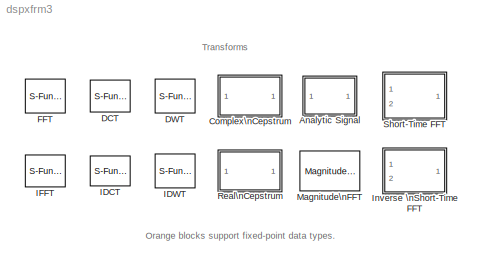
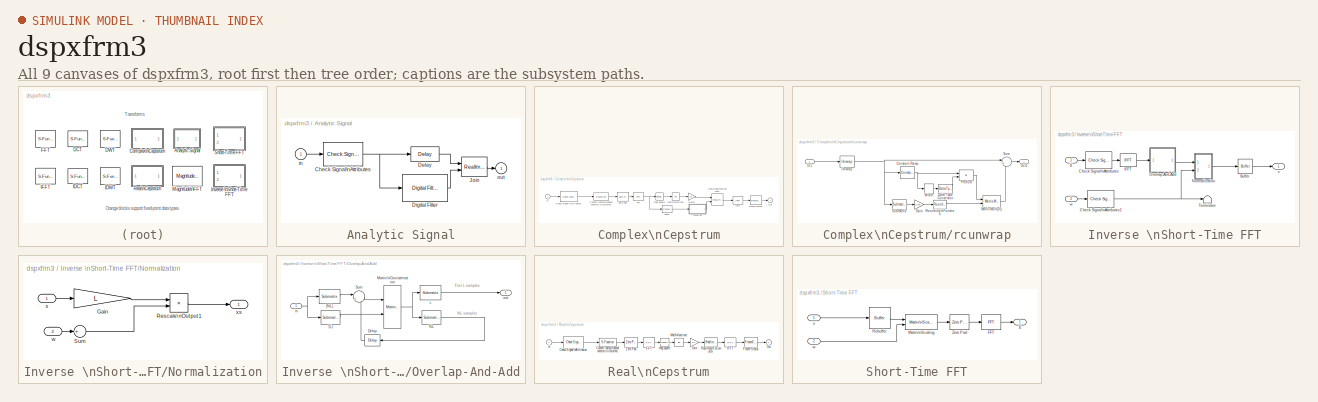
[diagram: thumbnail index - all 9 canvases of the model, root first then tree order]
MODEL dspxfrm3
KIND library
BLOCK [SubSystem] Analytic Signal
  MaskDescription = Complex analytic signal of input.
  MaskDisplay = plot(x,y)
  MaskEnableString = on
  MaskHelp = web(dspbhelp);
  MaskIconFrame = on
  MaskIconOpaque = on
  MaskIconRotate = none
  MaskIconUnits = autoscale
  MaskInitialization = x = [0,NaN,100,NaN,[58 58],NaN,[24 92],NaN,[58 24 24 58],NaN,[58 64 68 72 76 80 84 88],NaN, [42 42],NaN,[8 76],NaN,[72 68 64 60 56 52 48 42 36 32 28 24 20 16 12],NaN,[32 43 45 43 35]];\ny = [0,NaN,100,NaN,[43 8],NaN,[16 16],NaN,[18 18 17 17],NaN,[16 24 36 24 28 28 32 16],NaN, [92 56],NaN,[64 64],NaN,[64 80 76 76 72 84 72 64 72 84 72 76 76 80 64],NaN,[51 33 41 33 35] ];\nb=dspblkanalytic2('design',...<+5ch>
  MaskPromptString = Filter order (must be even):
  MaskSelfModifiable = on
  MaskStyleString = edit
  MaskToolTipString = on
  MaskTunableValueString = off
  MaskType = Analytic Signal
  MaskValueString = 100
  MaskVariables = N=@1;
  MaskVisibilityString = on
  MinAlgLoopOccurrences = off
  Ports = [1, 1]
  PropExecContextAcrossSSBoundary = on
  RTWSystemCode = Auto
  TreatAsAtomicUnit = off
BLOCK [Reference] Analytic Signal/Check Signal\nAttributes  REF=dspsigattribs/Check Signal\nAttributes
  Complexity = Ignore
  DatatypeCheckMethod = Is...
  DatatypeGeneral = Floating-point
  Dimensions = 1-D
  DimsCheckMethod = Ignore
  DtypeFixedSpecific = Any fixed-point
  DtypeFloatSpecific = Any floating-point
  DtypeIntSpecific = Any integer
  Frame = Ignore
  Ports = [1, 1]
  SampleMode = Ignore
  ShowPortLabels = on
  SigAttribCheckMethod = Does not match attributes exactly
  SourceBlock = dspsigattribs/Check Signal\nAttributes
  SourceType = Check Signal Attributes
BLOCK [Reference] Analytic Signal/Delay  REF=dspsigops/Delay
  Ports = [1, 1]
  SourceBlock = dspsigops/Delay
  SourceType = Delay
  delay = N/2
  dif_ic_for_ch = off
  dif_ic_for_dly = off
  dly_unit = Samples
  ic = 0
  ic_detail = off
  reset_popup = None
BLOCK [Reference] Analytic Signal/Digital Filter  REF=dsparch4/Digital Filter
  AllPoleFiltStruct = Direct form
  BiQuadCoeffs = [1 0.3 0.4 1 0.1 0.2]
  CoeffSource = Specify via dialog
  DenCoeffs = [1 0.1]
  FIRFiltStruct = Direct form transposed
  FiltPerSampPopup = One filter per frame
  IC = 0
  ICden = 0
  ICnum = 0
  IIRFiltStruct = Direct form II transposed
  LatticeCoeffs = [0.2 0.4]
  NumCoeffs = b
  Ports = [1, 1]
  SourceBlock = dsparch4/Digital Filter
  SourceType = Digital Filter
  TypePopup = FIR (all zeros)
  accumFracLength = 30
  accumMode = Same as product output
  accumWordLength = 32
  additionalParams = off
  allowOverrides = on
  denIgnore = on
  firstCoeffFracLength = 15
  firstCoeffMode = Same as input
  firstCoeffWordLength = 16
  memoryFracLength = 15
  memoryMode = Same as accumulator
  memoryWordLength = 16
  outputFracLength = 15
  outputMode = Same as accumulator
  outputWordLength = 16
  overflowMode = off
  prodOutputFracLength = 30
  prodOutputMode = Same as input
  prodOutputWordLength = 32
  roundingMode = Floor
  secondCoeffFracLength = 15
  secondCoeffMode = Same as numerator
  secondCoeffWordLength = 16
  showAcc = off
  showCoeff = off
  showMem = off
  showMpy = off
  showOut = off
  thirdCoeffFracLength = 15
  thirdCoeffMode = Same as input
  thirdCoeffWordLength = 16
BLOCK [RealImagToComplex] Analytic Signal/Join
  Input = Real and imag
  Ports = [2, 1]
BLOCK [Inport] Analytic Signal/in
  IconDisplay = Port number
  LatchInput = off
BLOCK [Outport] Analytic Signal/out
  BusOutputAsStruct = off
  IconDisplay = Port number
  InitialOutput = 0
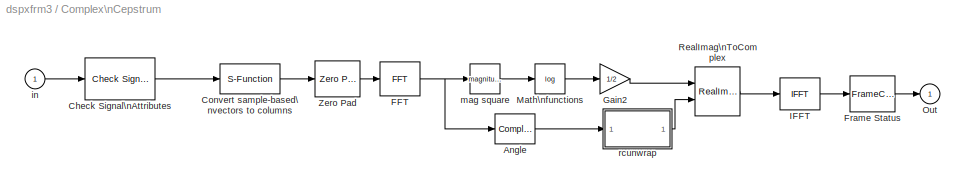
BLOCK [SubSystem] Complex\nCepstrum
  MaskCallbackString = dspblkcceps|
  MaskDescription = Complex cepstrum of input signal.  Input is modified to remove possible phase discontinuity at +/- pi radians.
  MaskDisplay = disp('Complex\\n Cepstrum')
  MaskEnableString = on,off
  MaskHelp = web(dspbhelp);\n
  MaskIconFrame = on
  MaskIconOpaque = on
  MaskIconRotate = none
  MaskIconUnits = autoscale
  MaskInitialization = dspblkcceps('init');
  MaskPromptString = Inherit FFT length from input port dimensions|FFT length:
  MaskSelfModifiable = on
  MaskStyleString = checkbox,edit
  MaskTabNameString = ,
  MaskToolTipString = on,on
  MaskTunableValueString = off,off
  MaskType = Complex Cepstrum
  MaskValueString = on|64
  MaskVarAliasString = ,
  MaskVariables = inheritFFT=@1;N=@2;
  MaskVisibilityString = on,on
  MinAlgLoopOccurrences = off
  Ports = [1, 1]
  PropExecContextAcrossSSBoundary = on
  RTWSystemCode = Auto
  TreatAsAtomicUnit = off
BLOCK [ComplexToMagnitudeAngle] Complex\nCepstrum/Angle
  Output = Angle
  Ports = [1, 1]
BLOCK [Reference] Complex\nCepstrum/Check Signal\nAttributes  REF=dspsigattribs/Check Signal\nAttributes
  Complexity = Real
  DatatypeCheckMethod = Is...
  DatatypeGeneral = Floating-point
  Dimensions = 1-D
  DimsCheckMethod = Ignore
  DtypeFixedSpecific = Any fixed-point
  DtypeFloatSpecific = Any floating-point
  DtypeIntSpecific = Any integer
  Frame = Ignore
  Ports = [1, 1]
  SampleMode = Discrete
  ShowPortLabels = on
  SigAttribCheckMethod = Does not match attributes exactly
  SourceBlock = dspsigattribs/Check Signal\nAttributes
  SourceType = Check Signal Attributes
BLOCK [S-Function] Complex\nCepstrum/Convert sample-based\nvectors to columns
  FunctionName = sdsp2col
  Ports = [1, 1]
BLOCK [Reference] Complex\nCepstrum/FFT  REF=dspxfrm3/FFT
  BitRevOrder = off
  CompMethod = Table lookup
  DialogController = dspDDGCreate
  DialogControllerArgs = DataTag0
  Ports = [1, 1]
  SkipNorm = on
  SourceBlock = dspxfrm3/FFT
  SourceType = FFT
  TableOpt = Speed
  accumFracLength = 30
  accumMode = Inherit via internal rule
  accumWordLength = 32
  additionalParams = off
  allowOverrides = on
  firstCoeffFracLength = 15
  firstCoeffMode = Same word length as input
  firstCoeffWordLength = 16
  outputFracLength = 15
  outputMode = Inherit via internal rule
  outputWordLength = 16
  overflowMode = off
  prodOutputFracLength = 30
  prodOutputMode = Inherit via internal rule
  prodOutputWordLength = 32
  roundingMode = Floor
BLOCK [FrameConversion] Complex\nCepstrum/Frame Status
  OutFrame = Sample based
BLOCK [Gain] Complex\nCepstrum/Gain2
  Gain = 1/2
BLOCK [Reference] Complex\nCepstrum/IFFT  REF=dspxfrm3/IFFT
  BitRevOrder = off
  CompMethod = Table lookup
  DialogController = dspDDGCreate
  DialogControllerArgs = DataTag1
  Ports = [1, 1]
  SkipNorm = off
  SourceBlock = dspxfrm3/IFFT
  SourceType = IFFT
  TableOpt = Speed
  accumFracLength = 30
  accumMode = Inherit via internal rule
  accumWordLength = 32
  additionalParams = off
  allowOverrides = on
  cs_in = on
  firstCoeffFracLength = 15
  firstCoeffMode = Same word length as input
  firstCoeffWordLength = 16
  mode = Real
  outputFracLength = 15
  outputMode = Inherit via internal rule
  outputWordLength = 16
  overflowMode = off
  prodOutputFracLength = 30
  prodOutputMode = Inherit via internal rule
  prodOutputWordLength = 32
  roundingMode = Floor
BLOCK [Math] Complex\nCepstrum/Math\nfunctions
  Operator = log
  Ports = [1, 1]
BLOCK [Outport] Complex\nCepstrum/Out
  BusOutputAsStruct = off
  IconDisplay = Port number
  InitialOutput = 0
BLOCK [RealImagToComplex] Complex\nCepstrum/RealImag\nToComplex
  Input = Real and imag
  Ports = [2, 1]
BLOCK [Reference] Complex\nCepstrum/Zero Pad  REF=dspsigops/Zero Pad
  Ports = [1, 1]
  SourceBlock = dspsigops/Zero Pad
  SourceType = Zero Pad
  numOutCols = 1
  numOutRows = N
  padNumOutColsSpecMethod = User-specified
  padNumOutRowsSpecMethod = User-specified
  padSigAt = End
  trunc_flag = None
  zpadAlong = None
BLOCK [Inport] Complex\nCepstrum/in
  IconDisplay = Port number
  LatchInput = off
BLOCK [Math] Complex\nCepstrum/mag square
  Operator = magnitude^2
  Ports = [1, 1]
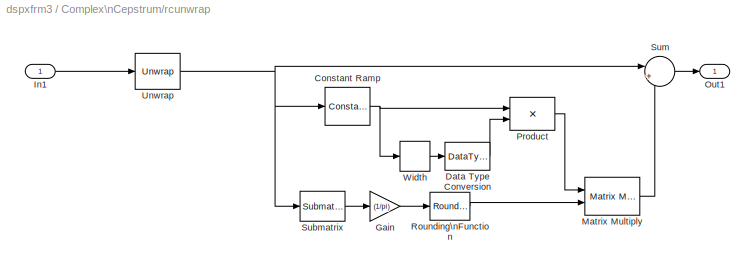
BLOCK [SubSystem] Complex\nCepstrum/rcunwrap
  MinAlgLoopOccurrences = off
  Ports = [1, 1]
  PropExecContextAcrossSSBoundary = on
  RTWSystemCode = Auto
  ShowPortLabels = off
  TreatAsAtomicUnit = off
BLOCK [Reference] Complex\nCepstrum/rcunwrap/Constant Ramp  REF=dspsrcs4/Constant Ramp
  L = Rows
  Offset = 0
  Ports = [1, 1]
  Slope = 2*pi
  SourceBlock = dspsrcs4/Constant Ramp
  SourceType = Constant Ramp
BLOCK [DataTypeConversion] Complex\nCepstrum/rcunwrap/Data Type Conversion
BLOCK [Gain] Complex\nCepstrum/rcunwrap/Gain
  Gain = (1/pi)
BLOCK [Inport] Complex\nCepstrum/rcunwrap/In1
  IconDisplay = Port number
  LatchInput = off
BLOCK [Reference] Complex\nCepstrum/rcunwrap/Matrix Multiply  REF=dspmtrx3/Matrix Multiply
  OptimizationLevel = None
  Ports = [2, 1]
  SourceBlock = dspmtrx3/Matrix Multiply
  SourceType = Matrix Multiply
  numInputPorts = 2
BLOCK [Outport] Complex\nCepstrum/rcunwrap/Out1
  BusOutputAsStruct = off
  IconDisplay = Port number
BLOCK [Product] Complex\nCepstrum/rcunwrap/Product
  Inputs = */
  Ports = [2, 1]
  RndMeth = Floor
BLOCK [Rounding] Complex\nCepstrum/rcunwrap/Rounding\nFunction
  Operator = round
BLOCK [Reference] Complex\nCepstrum/rcunwrap/Submatrix  REF=dspmtrx3/Submatrix
  ColEndIndex = 1
  ColEndMode = Last
  ColSpan = All columns
  ColStartIndex = 1
  ColStartMode = First
  Ports = [1, 1]
  RowEndIndex = 1
  RowEndMode = Last
  RowSpan = One row
  RowStartIndex = 1
  RowStartMode = Middle
  SourceBlock = dspmtrx3/Submatrix
  SourceType = Submatrix
BLOCK [Sum] Complex\nCepstrum/rcunwrap/Sum
  IconShape = round
  Inputs = |+-
  Ports = [2, 1]
BLOCK [Reference] Complex\nCepstrum/rcunwrap/Unwrap  REF=dspsigops/Unwrap
  Ports = [1, 1]
  SourceBlock = dspsigops/Unwrap
  SourceType = Unwrap
  running = on
  tol = pi
BLOCK [Width] Complex\nCepstrum/rcunwrap/Width
  DataType = int32
BLOCK [S-Function] DCT
  FunctionName = sdspdct3
  MaskDescription = Outputs the discrete cosine transform (DCT) of a real or complex input by computing a fast cosine transform (FCT) using a radix-2 FFT.\n\nComputes the DCT along the vector dimension for sample-based vector inputs, which must have a power-of-2 length. Computes the DCT along each column for all other inputs, where the columns must be a power-of-2 length.
  MaskDisplay = disp(' DCT')
  MaskEnableString = on
  MaskHelp = web(dspbhelp);
  MaskIconFrame = on
  MaskIconOpaque = on
  MaskIconRotate = none
  MaskIconUnits = autoscale
  MaskPromptString = Sine and cosine computation:
  MaskStyleString = popup(Table lookup|Trigonometric fcn)
  MaskToolTipString = on
  MaskTunableValueString = off
  MaskType = DCT
  MaskValueString = Table lookup
  MaskVariables = CompMethod=@1;
  MaskVisibilityString = on
  Parameters = 0, CompMethod
  Ports = [1, 1]
BLOCK [S-Function] DWT
  FunctionName = sdspdwt
  MaskCallbackString = dspblkdwt|||||||
  MaskDescription = Computes the discrete wavelet transform (DWT). Uses a filter bank with specified highpass and lowpass FIR filters to decompose the input into subbands that have smaller bandwidths and slower sample rates. The filters can be user-defined or wavelet-based (use of wavelets requires the Wavelet Toolbox).  Usually, the highpass and lowpass filters should be half-band filters designed to complement each...<+717ch>
  MaskDisplay = disp(' DWT')\n\ntext(0.07,0.16,str)
  MaskEnableString = on,off,off,on,on,on,on,on
  MaskHelp = web(dspbhelp);
  MaskIconFrame = on
  MaskIconOpaque = on
  MaskIconRotate = none
  MaskIconUnits = normalized
  MaskInitialization = [x,y, str] = dspblkdwt('icon');\n[phl, phh] = dspblkdwt('init', LPF, HPF, tree);\n
  MaskPromptString = Filter:|Filter order [synthesis / analysis]:|Wavelet order: |Lowpass FIR filter coefficients:|Highpass FIR filter coefficients:|Number of levels:|Tree structure:|Output:
  MaskSelfModifiable = on
  MaskStyleString = popup(User-defined|Haar|Daubechies|Symlets|Coiflets|Biorthogonal|Reverse Biorthogonal|Discrete Meyer),popup([1 / 1]|[1 / 3]|[1 / 5]|[2 / 2]|[2 / 4]|[2 / 6]|[2 / 8]|[3 / 1]|[3 / 3]|[3 / 5]|[3 / 7]|[3 / 9]|[4 / 4]|[5 / 5]|[6 / 8]),edit,edit,edit,edit,popup(Asymmetric|Symmetric),popup(Single port|Multiple ports)
  MaskTabNameString = ,,,,,,,
  MaskToolTipString = on,on,on,on,on,on,on,on
  MaskTunableValueString = off,off,off,off,off,off,off,off
  MaskType = DWT
  MaskValueString = User-defined|[1 / 1]|2|[0.0352   -0.0854   -0.1350   0.4599   0.8069   0.3327]|[-0.3327    0.8069   -0.4599   -0.1350    0.0854    0.0352]|2|Asymmetric|Single port
  MaskVarAliasString = ,,,,,,,
  MaskVariables = Wname=&1;OrdRec_ordDec=&2;Order=@3;LPF=@4;HPF=@5;NumLevels=@6;tree=@7;Output=@8;
  MaskVisibilityString = on,off,off,on,on,on,on,on
  Parameters = phl, phh, NumLevels, tree, Output
  Ports = [1, 1]
BLOCK [S-Function] FFT
  CopyFcn = dspfixptcopycallback
  DialogController = dspDDGCreate
  DialogControllerArgs = DataTag2
  FunctionName = sdspfft2
  MaskCallbackString = ||||||||||||||||||||
  MaskDescription = Outputs the complex fast Fourier transform (FFT) of a real or complex input by computing radix-2 decimation-in-time (DIT) or decimation-in-frequency (DIF), depending on block options. Uses half-length and double-signal algorithms for real inputs where possible.\n\nComputes the FFT along the vector dimension for sample-based vector inputs, which must have a power-of-2 length. Computes the FFT along...<+81ch>
  MaskDisplay = disp('  FFT ');
  MaskEnableString = on,on,on,off,off,on,on,on,on,on,on,on,on,on,on,on,on,on,on,on,on
  MaskHelp = web(dspbhelp);
  MaskIconFrame = on
  MaskIconOpaque = on
  MaskIconRotate = none
  MaskIconUnits = autoscale
  MaskInitialization = dtInfo = dspGetFixptDataTypeInfo(gcbh,47);\n
  MaskPromptString = Twiddle factor computation:|Optimize table for:|Output in bit-reversed order|---------- Show additional parameters ----------|Skip divide-by-two on butterfly outputs for fixed-point signals|Allow overrides from DSP Fixed-Point Attributes blocks|Fixed-point sine table attributes:|Sine table word length:|Sine table fraction length:|Fixed-point output attributes:|Output word length:|Output fraction l...<+272ch>
  MaskSelfModifiable = on
  MaskStyleString = popup(Trigonometric fcn|Table lookup),popup(Speed|Memory),checkbox,checkbox,checkbox,checkbox,popup(Same word length as input|Specify word length|Same as input|Same as output|User-defined|Binary point scaling|Slope and bias scaling),edit,edit,popup(Inherit via internal rule|Same as input|Binary point scaling|Slope and bias scaling|User-defined),edit,edit,popup(Inherit via internal rule|Same as pro...<+246ch>
  MaskTabNameString = ,,,,,,,,,,,,,,,,,,,,
  MaskToolTipString = on,on,on,on,on,on,on,on,on,on,on,on,on,on,on,on,on,on,on,on,on
  MaskTunableValueString = off,off,off,off,off,off,off,off,off,off,off,off,off,off,off,off,off,off,off,off,off
  MaskType = FFT
  MaskValueString = Table lookup|Speed|off|off|on|on|Same word length as input|16|15|Inherit via internal rule|16|15|Inherit via internal rule|32|30|Inherit via internal rule|32|30|Floor|off|off
  MaskVarAliasString = ,,,,,,,,,,,,,,,,,,,,
  MaskVariables = CompMethod=@1;TableOpt=@2;BitRevOrder=@3;additionalParams=@4;SkipNorm=@5;allowOverrides=@6;firstCoeffMode=@7;firstCoeffWordLength=@8;firstCoeffFracLength=@9;outputMode=@10;outputWordLength=@11;outputFracLength=@12;accumMode=@13;accumWordLength=@14;accumFracLength=@15;prodOutputMode=@16;prodOutputWordLength=@17;prodOutputFracLength=@18;roundingMode=@19;overflowMode=@20;LockScale=@21;
  MaskVisibilityString = on,on,on,off,off,on,on,on,on,on,on,on,on,on,on,on,on,on,on,on,on
  Parameters = 0,CompMethod,TableOpt,BitRevOrder,0,SkipNorm,dtInfo.firstCoeffMode,dtInfo.firstCoeffWordLength,dtInfo.firstCoeffFracLength,dtInfo.prodOutputMode,dtInfo.prodOutputWordLength,dtInfo.prodOutputFracLength,dtInfo.accumMode,dtInfo.accumWordLength,dtInfo.accumFracLength,dtInfo.outputMode,dtInfo.outputWordLength,dtInfo.outputFracLength,dtInfo.roundingMode,dtInfo.overflowMode
  Ports = [1, 1]
BLOCK [S-Function] IDCT
  FunctionName = sdspdct3
  MaskDescription = Outputs the inverse discrete cosine transform (IDCT) of a real or complex input by computing an inverse fast cosine transform (IFCT) using a radix-2 IFFT.\n\nComputes the IDCT along the vector dimension for sample-based vector inputs, which must have a power-of-2 length. Computes the IDCT along each column for all other inputs, where the columns must be a power-of-2 length.
  MaskDisplay = disp('IDCT')
  MaskEnableString = on
  MaskHelp = web(dspbhelp);
  MaskIconFrame = on
  MaskIconOpaque = on
  MaskIconRotate = none
  MaskIconUnits = autoscale
  MaskPromptString = Sine and cosine computation:
  MaskStyleString = popup(Table lookup|Trigonometric fcn)
  MaskToolTipString = on
  MaskTunableValueString = off
  MaskType = IDCT
  MaskValueString = Table lookup
  MaskVariables = CompMethod=@1;
  MaskVisibilityString = on
  Parameters = 1, CompMethod
  Ports = [1, 1]
BLOCK [S-Function] IDWT
  FunctionName = sdspidwt
  MaskCallbackString = dspblkidwt|||||||
  MaskDescription = Computes the inverse discrete wavelet transform (IDWT). Uses a filter bank with specified highpass and lowpass FIR filters to reconstruct the original signal from its subbands, which have smaller bandwidths and slower sample rates. Filters can be user-defined or wavelet-based (use of wavelets requires the Wavelet Toolbox). Usually, the highpass and lowpass filters should be half-band filters desig...<+659ch>
  MaskDisplay = disp(' IDWT')\ntext(0.07,0.16,str)
  MaskEnableString = on,off,off,on,on,on,on,on
  MaskHelp = web(dspbhelp);
  MaskIconFrame = on
  MaskIconOpaque = on
  MaskIconRotate = port
  MaskIconUnits = normalized
  MaskInitialization = [x,y,str] = dspblkidwt('icon');\n[phl, phh] = dspblkidwt('init', LPF, HPF, tree);\n
  MaskPromptString = Filter:|Filter order [synthesis, analysis]:|Wavelet order: |Lowpass FIR filter coefficients:|Highpass FIR filter coefficients:|Number of levels:|Tree Structure:|Input:
  MaskSelfModifiable = on
  MaskStyleString = popup(User-defined|Haar|Daubechies|Symlets|Coiflets|Biorthogonal|Reverse Biorthogonal|Discrete Meyer),popup([1 / 1]|[1 / 3]|[1 / 5]|[2 / 2]|[2 / 4]|[2 / 6]|[2 / 8]|[3 / 1]|[3 / 3]|[3 / 5]|[3 / 7]|[3 / 9]|[4 / 4]|[5 / 5]|[6 / 8]),edit,edit,edit,edit,popup(Asymmetric|Symmetric),popup(Single port|Multiple ports)
  MaskTabNameString = ,,,,,,,
  MaskToolTipString = on,on,on,on,on,on,on,on
  MaskTunableValueString = off,off,off,off,off,off,off,off
  MaskType = IDWT
  MaskValueString = User-defined|[1 / 1]|2|[0.3327    0.8069    0.4599   -0.1350   -0.0854    0.0352]|[0.0352    0.0854   -0.1350   -0.4599    0.8069   -0.3327]|2|Asymmetric|Single port
  MaskVarAliasString = ,,,,,,,
  MaskVariables = Wname=&1;OrdRec_ordDec=&2;Order=@3;LPF=@4;HPF=@5;NumLevels=@6;tree=@7;Input=@8;
  MaskVisibilityString = on,off,off,on,on,on,on,on
  Parameters = phl, phh, NumLevels, tree, Input
  Ports = [1, 1]
BLOCK [S-Function] IFFT
  ClipboardFcn = dspblkDDClose;
  CopyFcn = dspfixptcopycallback
  DialogController = dspDDGCreate
  DialogControllerArgs = DataTag3
  FunctionName = sdspfft2
  MaskCallbackString = ||||||||||||||||||||||
  MaskDescription = Outputs the inverse fast Fourier transform (IFFT) of a real or complex input by computing radix-2 decimation-in-time (DIT) or decimation-in-frequency (DIF), depending on block options. Outputs are real if you select 'Input is conjugate symmetric' option; otherwise, outputs are complex.\n\nComputes the IFFT along the vector dimension for sample-based vector inputs, which must have a power-of-2 leng...<+108ch>
  MaskDisplay = disp('  IFFT')
  MaskEnableString = on,on,on,on,on,off,off,off,on,on,on,on,on,on,on,on,on,on,on,on,on,on,on
  MaskHelp = web(dspbhelp);
  MaskIconFrame = on
  MaskIconOpaque = on
  MaskIconRotate = none
  MaskIconUnits = autoscale
  MaskInitialization = dtInfo = dspGetFixptDataTypeInfo(gcbh,47);\n
  MaskPromptString = Twiddle factor computation:|Optimize table for:|Input is in bit-reversed order|Input is conjugate symmetric|Skip scaling|Output:|---------- Show additional parameters ----------|Allow overrides from DSP FPA Fixed-Point Attributes blocks|Fixed-point sine table attributes:|Sine table word length:|Sine table fraction length:|Fixed-point output attributes:|Output word length:|Output fraction length:|F...<+264ch>
  MaskSelfModifiable = on
  MaskStyleString = popup(Trigonometric fcn|Table lookup),popup(Speed|Memory),checkbox,checkbox,checkbox,popup(Real|Complex),checkbox,checkbox,popup(Same word length as input|Specify word length|Same as input|Same as output|User-defined|Binary point scaling|Slope and bias scaling),edit,edit,popup(Inherit via internal rule|Same as input|Binary point scaling|Slope and bias scaling|User-defined),edit,edit,popup(Inherit ...<+275ch>
  MaskTabNameString = ,,,,,,,,,,,,,,,,,,,,,,
  MaskToolTipString = on,on,on,on,on,on,on,on,on,on,on,on,on,on,on,on,on,on,on,on,on,on,on
  MaskTunableValueString = off,off,off,off,off,off,off,off,off,off,off,off,off,off,off,off,off,off,off,off,off,off,off
  MaskType = IFFT
  MaskValueString = Table lookup|Speed|off|off|off|Complex|off|on|Same word length as input|16|15|Inherit via internal rule|16|15|Inherit via internal rule|32|30|Inherit via internal rule|32|30|Floor|off|off
  MaskVarAliasString = ,,,,,,,,,,,,,,,,,,,,,,
  MaskVariables = CompMethod=@1;TableOpt=@2;BitRevOrder=@3;cs_in=@4;SkipNorm=@5;mode=@6;additionalParams=@7;allowOverrides=@8;firstCoeffMode=@9;firstCoeffWordLength=@10;firstCoeffFracLength=@11;outputMode=@12;outputWordLength=@13;outputFracLength=@14;accumMode=@15;accumWordLength=@16;accumFracLength=@17;prodOutputMode=@18;prodOutputWordLength=@19;prodOutputFracLength=@20;roundingMode=@21;overflowMode=@22;LockScale=...<+4ch>
  MaskVisibilityString = on,on,on,on,on,off,off,off,on,on,on,on,on,on,on,on,on,on,on,on,on,on,on
  Parameters = 1,CompMethod,TableOpt,BitRevOrder,cs_in,SkipNorm,dtInfo.firstCoeffMode,dtInfo.firstCoeffWordLength,dtInfo.firstCoeffFracLength,dtInfo.prodOutputMode,dtInfo.prodOutputWordLength,dtInfo.prodOutputFracLength,dtInfo.accumMode,dtInfo.accumWordLength,dtInfo.accumFracLength,dtInfo.outputMode,dtInfo.outputWordLength,dtInfo.outputFracLength,dtInfo.roundingMode,dtInfo.overflowMode
  Ports = [1, 1]
BLOCK [SubSystem] Inverse \nShort-Time FFT
  MaskCallbackString = |||dspblkistfft('dynamic');||
  MaskDescription = Reconstructs a signal from its Short-Time FFT (STFFT) by using the OLA method. The block takes as an input the analysis window w[n] used in the generation of the STFFT to normalize the output signal.\n\nOptionally, the block asserts if the analysis window does not satisfy\nconstraints that permit perfect reconstruction of the signal.\n
  MaskDisplay = port_label('input',1,'X[nL,k]')\nport_label('output',1,'x[n]')\nport_label('input',2,'w[n]')
  MaskEnableString = on,on,on,on,on,on
  MaskHelp = web(dspbhelp)
  MaskIconFrame = on
  MaskIconOpaque = on
  MaskIconRotate = none
  MaskIconUnits = autoscale
  MaskInitialization = L = dspblkistfft('init',DoAssert,OvLap,W,InConjSymm);
  MaskPromptString = Overlap between consecutive STFFT frames (in samples):|Samples per output frame:|Input is conjugate symmetric|Assert if analysis window does not support perfect signal reconstruction|Analysis window length:|Reconstruction error tolerance:
  MaskSelfModifiable = on
  MaskStyleString = edit,edit,checkbox,checkbox,edit,edit
  MaskTabNameString = ,,,,,
  MaskToolTipString = on,on,on,on,on,on
  MaskTunableValueString = off,off,off,off,off,off
  MaskType = Inverse Short-Time FFT
  MaskValueString = 512-16|512|on|off|512|1e-4
  MaskVarAliasString = ,,,,,
  MaskVariables = OvLap=@1;OutFrameSize=@2;InConjSymm=@3;DoAssert=@4;W=@5;Tol=@6;
  MaskVisibilityString = on,on,on,on,off,off
  MinAlgLoopOccurrences = off
  Ports = [2, 1]
  PropExecContextAcrossSSBoundary = on
  RTWSystemCode = Auto
  TreatAsAtomicUnit = off
BLOCK [Reference] Inverse \nShort-Time FFT/Buffer  REF=dspbuff3/Buffer
  N = OutFrameSize
  Ports = [1, 1]
  SourceBlock = dspbuff3/Buffer
  SourceType = Buffer
  V = 0
  ic = 0
BLOCK [Reference] Inverse \nShort-Time FFT/Check Signal\nAttributes  REF=dspsigattribs/Check Signal\nAttributes
  Complexity = Ignore
  DatatypeCheckMethod = Is...
  DatatypeGeneral = Floating-point
  Dimensions = 1-D
  DimsCheckMethod = Ignore
  DtypeFixedSpecific = Any fixed-point
  DtypeFloatSpecific = Any floating-point
  DtypeIntSpecific = Any integer
  Frame = Ignore
  Ports = [1, 1]
  SampleMode = Ignore
  ShowPortLabels = on
  SigAttribCheckMethod = Does not match attributes exactly
  SourceBlock = dspsigattribs/Check Signal\nAttributes
  SourceType = Check Signal Attributes
BLOCK [Reference] Inverse \nShort-Time FFT/Check Signal\nAttributes1  REF=dspsigattribs/Check Signal\nAttributes
  Complexity = Ignore
  DatatypeCheckMethod = Is...
  DatatypeGeneral = Floating-point
  Dimensions = 1-D
  DimsCheckMethod = Ignore
  DtypeFixedSpecific = Any fixed-point
  DtypeFloatSpecific = Any floating-point
  DtypeIntSpecific = Any integer
  Frame = Ignore
  Ports = [1, 1]
  SampleMode = Ignore
  ShowPortLabels = on
  SigAttribCheckMethod = Does not match attributes exactly
  SourceBlock = dspsigattribs/Check Signal\nAttributes
  SourceType = Check Signal Attributes
BLOCK [Reference] Inverse \nShort-Time FFT/IFFT  REF=dspxfrm3/IFFT
  BitRevOrder = off
  CompMethod = Table lookup
  DialogController = dspDDGCreate
  DialogControllerArgs = DataTag4
  LockScale = off
  Ports = [1, 1]
  SkipNorm = off
  SourceBlock = dspxfrm3/IFFT
  SourceType = IFFT
  TableOpt = Speed
  accumFracLength = 30
  accumMode = Inherit via internal rule
  accumWordLength = 32
  additionalParams = off
  allowOverrides = on
  cs_in = on
  firstCoeffFracLength = 15
  firstCoeffMode = Same word length as input
  firstCoeffWordLength = 16
  mode = Real
  outputFracLength = 15
  outputMode = Same as input
  outputWordLength = 16
  overflowMode = off
  prodOutputFracLength = 30
  prodOutputMode = Inherit via internal rule
  prodOutputWordLength = 32
  roundingMode = Floor
BLOCK [SubSystem] Inverse \nShort-Time FFT/Normalization
  MinAlgLoopOccurrences = off
  Ports = [2, 1]
  PropExecContextAcrossSSBoundary = on
  RTWSystemCode = Auto
  TreatAsAtomicUnit = off
BLOCK [Gain] Inverse \nShort-Time FFT/Normalization/Gain
  Gain = L
BLOCK [Product] Inverse \nShort-Time FFT/Normalization/Rescale\nOutput1
  Inputs = */
  Ports = [2, 1]
  RndMeth = Floor
  SaturateOnIntegerOverflow = off
BLOCK [Sum] Inverse \nShort-Time FFT/Normalization/Sum
  IconShape = round
  InputSameDT = off
  Inputs = +
  OutDataTypeMode = Inherit via internal rule
  Ports = [1, 1]
BLOCK [Inport] Inverse \nShort-Time FFT/Normalization/w
  IconDisplay = Port number
  LatchInput = off
  Port = 2
BLOCK [Inport] Inverse \nShort-Time FFT/Normalization/x
  IconDisplay = Port number
  LatchInput = off
BLOCK [Outport] Inverse \nShort-Time FFT/Normalization/xs
  BusOutputAsStruct = off
  IconDisplay = Port number
BLOCK [SubSystem] Inverse \nShort-Time FFT/Overlap-And-Add
  MaskDescription = Performs overlap-and-add on the input signal. Disjoint frames of the input signal are overlapped with each other for a specified number of points and summed. \n
  MaskDisplay = disp('Overlap\\nAnd\\nAdd')
  MaskEnableString = on
  MaskIconFrame = on
  MaskIconOpaque = on
  MaskIconRotate = none
  MaskIconUnits = autoscale
  MaskPromptString = Number of new points in each frame
  MaskStyleString = edit
  MaskToolTipString = on
  MaskTunableValueString = on
  MaskType = Overlap-And-Add
  MaskValueString = L
  MaskVariables = L=@1;
  MaskVisibilityString = on
  MinAlgLoopOccurrences = off
  Ports = [1, 1]
  PropExecContextAcrossSSBoundary = on
  RTWSystemCode = Auto
  TreatAsAtomicUnit = off
BLOCK [Reference] Inverse \nShort-Time FFT/Overlap-And-Add/(L)  REF=dspmtrx3/Submatrix
  ColEndIndex = 1
  ColEndMode = Last
  ColSpan = All columns
  ColStartIndex = 1
  ColStartMode = First
  Ports = [1, 1]
  RowEndIndex = 1
  RowEndMode = Last
  RowSpan = Range of rows
  RowStartIndex = L-1
  RowStartMode = Offset from last
  SourceBlock = dspmtrx3/Submatrix
  SourceType = Submatrix
BLOCK [Reference] Inverse \nShort-Time FFT/Overlap-And-Add/(N-L)  REF=dspmtrx3/Submatrix
  ColEndIndex = 1
  ColEndMode = Last
  ColSpan = All columns
  ColStartIndex = 1
  ColStartMode = First
  Ports = [1, 1]
  RowEndIndex = L
  RowEndMode = Offset from last
  RowSpan = Range of rows
  RowStartIndex = 1
  RowStartMode = First
  SourceBlock = dspmtrx3/Submatrix
  SourceType = Submatrix
BLOCK [Reference] Inverse \nShort-Time FFT/Overlap-And-Add/Delay  REF=dspsigops/Delay
  Ports = [1, 1]
  SourceBlock = dspsigops/Delay
  SourceType = Delay
  delay = 1
  dif_ic_for_ch = off
  dif_ic_for_dly = off
  dly_unit = Frames
  ic = 0
  ic_detail = off
  reset_popup = None
BLOCK [Reference] Inverse \nShort-Time FFT/Overlap-And-Add/L  REF=dspmtrx3/Submatrix
  ColEndIndex = 1
  ColEndMode = Last
  ColSpan = All columns
  ColStartIndex = 1
  ColStartMode = First
  Ports = [1, 1]
  RowEndIndex = L
  RowEndMode = Index
  RowSpan = Range of rows
  RowStartIndex = 1
  RowStartMode = First
  SourceBlock = dspmtrx3/Submatrix
  SourceType = Submatrix
BLOCK [Reference] Inverse \nShort-Time FFT/Overlap-And-Add/Matrix\nConcatenation  REF=simulink/Math\nOperations/Matrix\nConcatenation
  Ports = [2, 1]
  SourceBlock = simulink/Math\nOperations/Matrix\nConcatenation
  SourceType = Matrix Concatenation
  catMethod = Vertical
  numInports = 2
BLOCK [Reference] Inverse \nShort-Time FFT/Overlap-And-Add/N-L  REF=dspmtrx3/Submatrix
  ColEndIndex = 1
  ColEndMode = Last
  ColSpan = All columns
  ColStartIndex = 1
  ColStartMode = First
  Ports = [1, 1]
  RowEndIndex = 1
  RowEndMode = Last
  RowSpan = Range of rows
  RowStartIndex = L+1
  RowStartMode = Index
  SourceBlock = dspmtrx3/Submatrix
  SourceType = Submatrix
BLOCK [Sum] Inverse \nShort-Time FFT/Overlap-And-Add/Sum
  IconShape = round
  Inputs = |++
  Ports = [2, 1]
BLOCK [Inport] Inverse \nShort-Time FFT/Overlap-And-Add/in
  IconDisplay = Port number
  LatchInput = off
BLOCK [Outport] Inverse \nShort-Time FFT/Overlap-And-Add/out
  BusOutputAsStruct = off
  IconDisplay = Port number
BLOCK [Terminator] Inverse \nShort-Time FFT/Terminator
BLOCK [Inport] Inverse \nShort-Time FFT/X
  IconDisplay = Port number
  LatchInput = off
BLOCK [Inport] Inverse \nShort-Time FFT/w
  IconDisplay = Port number
  LatchInput = off
  Port = 2
BLOCK [Outport] Inverse \nShort-Time FFT/x
  BusOutputAsStruct = off
  IconDisplay = Port number
BLOCK [Reference] Magnitude\nFFT  REF=dspspect3/Magnitude\nFFT
  Ports = [1, 1]
  ShowPortLabels = on
  SourceBlock = dspspect3/Magnitude\nFFT
  SourceType = Magnitude FFT
  fftLenInherit = off
  fftsize = 256
  mag_or_magsq = Magnitude squared
BLOCK [SubSystem] Real\nCepstrum
  MaskCallbackString = dspblkrceps|
  MaskDescription = Real cepstrum of input signal.
  MaskDisplay = disp('Real\\nCepstrum')
  MaskEnableString = on,off
  MaskHelp = web(dspbhelp);\n
  MaskIconFrame = on
  MaskIconOpaque = on
  MaskIconRotate = none
  MaskIconUnits = autoscale
  MaskInitialization = dspblkrceps('init');
  MaskPromptString = Inherit FFT length from input port dimensions|FFT length:
  MaskSelfModifiable = on
  MaskStyleString = checkbox,edit
  MaskTabNameString = ,
  MaskToolTipString = on,on
  MaskTunableValueString = off,off
  MaskType = Real Cepstrum
  MaskValueString = on|64
  MaskVarAliasString = ,
  MaskVariables = inheritFFT=@1;N=@2;
  MaskVisibilityString = on,on
  MinAlgLoopOccurrences = off
  Ports = [1, 1]
  PropExecContextAcrossSSBoundary = on
  RTWSystemCode = Auto
  TreatAsAtomicUnit = off
BLOCK [Reference] Real\nCepstrum/Check Signal\nAttributes  REF=dspsigattribs/Check Signal\nAttributes
  Complexity = Real
  DatatypeCheckMethod = Is...
  DatatypeGeneral = Floating-point
  Dimensions = 1-D
  DimsCheckMethod = Ignore
  DtypeFixedSpecific = Any fixed-point
  DtypeFloatSpecific = Any floating-point
  DtypeIntSpecific = Any integer
  Frame = Ignore
  Ports = [1, 1]
  SampleMode = Discrete
  ShowPortLabels = on
  SigAttribCheckMethod = Does not match attributes exactly
  SourceBlock = dspsigattribs/Check Signal\nAttributes
  SourceType = Check Signal Attributes
BLOCK [S-Function] Real\nCepstrum/Convert sample-based\nvectors to columns
  FunctionName = sdsp2col
  Ports = [1, 1]
BLOCK [Reference] Real\nCepstrum/FFT  REF=dspxfrm3/FFT
  BitRevOrder = off
  CompMethod = Table lookup
  DialogController = dspDDGCreate
  DialogControllerArgs = DataTag5
  Ports = [1, 1]
  SkipNorm = on
  SourceBlock = dspxfrm3/FFT
  SourceType = FFT
  TableOpt = Speed
  accumFracLength = 30
  accumMode = Inherit via internal rule
  accumWordLength = 32
  additionalParams = off
  allowOverrides = on
  firstCoeffFracLength = 15
  firstCoeffMode = Same word length as input
  firstCoeffWordLength = 16
  outputFracLength = 15
  outputMode = Inherit via internal rule
  outputWordLength = 16
  overflowMode = off
  prodOutputFracLength = 30
  prodOutputMode = Inherit via internal rule
  prodOutputWordLength = 32
  roundingMode = Floor
BLOCK [FrameConversion] Real\nCepstrum/Frame Status
  OutFrame = Sample based
BLOCK [Gain] Real\nCepstrum/Gain
  Gain = 1/2
BLOCK [Reference] Real\nCepstrum/IFFT  REF=dspxfrm3/IFFT
  BitRevOrder = off
  CompMethod = Table lookup
  DialogController = dspDDGCreate
  DialogControllerArgs = DataTag6
  Ports = [1, 1]
  SkipNorm = off
  SourceBlock = dspxfrm3/IFFT
  SourceType = IFFT
  TableOpt = Speed
  accumFracLength = 30
  accumMode = Inherit via internal rule
  accumWordLength = 32
  additionalParams = off
  allowOverrides = on
  cs_in = on
  firstCoeffFracLength = 15
  firstCoeffMode = Same word length as input
  firstCoeffWordLength = 16
  mode = Real
  outputFracLength = 15
  outputMode = Inherit via internal rule
  outputWordLength = 16
  overflowMode = off
  prodOutputFracLength = 30
  prodOutputMode = Inherit via internal rule
  prodOutputWordLength = 32
  roundingMode = Floor
BLOCK [Math] Real\nCepstrum/Math\nfunctions
  Operator = log
  Ports = [1, 1]
BLOCK [Outport] Real\nCepstrum/Out
  BusOutputAsStruct = off
  IconDisplay = Port number
  InitialOutput = 0
BLOCK [RealImagToComplex] Real\nCepstrum/RealImag\nToComplex
  Input = Real
  Ports = [1, 1]
BLOCK [Reference] Real\nCepstrum/Zero Pad  REF=dspsigops/Zero Pad
  Ports = [1, 1]
  SourceBlock = dspsigops/Zero Pad
  SourceType = Zero Pad
  numOutCols = 1
  numOutRows = N
  padNumOutColsSpecMethod = User-specified
  padNumOutRowsSpecMethod = User-specified
  padSigAt = End
  trunc_flag = None
  zpadAlong = None
BLOCK [Inport] Real\nCepstrum/in
  IconDisplay = Port number
  LatchInput = off
BLOCK [Math] Real\nCepstrum/mag square
  Operator = magnitude^2
  Ports = [1, 1]
BLOCK [SubSystem] Short-Time FFT
  CopyFcn = dspfixptcopycallback
  MaskCallbackString = ||
  MaskDescription = Output the Short-Time FFT of the input signal x[n]. \nUses an externally specified analysis window w[n].\n
  MaskDisplay = port_label('input',1,'x[n]')\nport_label('input',2,'w[n]')\nport_label('output',1,'X[nL,k]')
  MaskEnableString = on,on,on
  MaskHelp = web(dspbhelp)
  MaskIconFrame = on
  MaskIconOpaque = on
  MaskIconRotate = none
  MaskIconUnits = autoscale
  MaskInitialization = L = W-OvLap;
  MaskPromptString = Analysis window length:|Overlap between consecutive windows (in samples):|FFT length:
  MaskSelfModifiable = on
  MaskStyleString = edit,edit,edit
  MaskTabNameString = ,,
  MaskToolTipString = on,on,on
  MaskTunableValueString = off,off,off
  MaskType = Short-Time FFT
  MaskValueString = 512|512-16|1024
  MaskVarAliasString = ,,
  MaskVariables = W=@1;OvLap=@2;M=@3;
  MaskVisibilityString = on,on,on
  MinAlgLoopOccurrences = off
  Ports = [2, 1]
  PropExecContextAcrossSSBoundary = on
  RTWSystemCode = Auto
  TreatAsAtomicUnit = off
BLOCK [Reference] Short-Time FFT/FFT  REF=dspxfrm3/FFT
  BitRevOrder = off
  CompMethod = Table lookup
  DialogController = dspDDGCreate
  DialogControllerArgs = DataTag7
  Ports = [1, 1]
  SkipNorm = on
  SourceBlock = dspxfrm3/FFT
  SourceType = FFT
  TableOpt = Speed
  accumFracLength = 30
  accumMode = Inherit via internal rule
  accumWordLength = 32
  additionalParams = off
  allowOverrides = on
  firstCoeffFracLength = 15
  firstCoeffMode = Same word length as input
  firstCoeffWordLength = 16
  outputFracLength = 15
  outputMode = Inherit via internal rule
  outputWordLength = 16
  overflowMode = off
  prodOutputFracLength = 30
  prodOutputMode = Inherit via internal rule
  prodOutputWordLength = 32
  roundingMode = Floor
BLOCK [Reference] Short-Time FFT/Matrix\nScaling  REF=dspmtrx3/Matrix\nScaling
  D_Source = Input port
  D_VectFromMask = [0.5 0.25]
  DialogController = dspDDGCreate
  DialogControllerArgs = DataTag8
  Ports = [2, 1]
  SourceBlock = dspmtrx3/Matrix\nScaling
  SourceType = Matrix Scaling
  accumFracLength = 30
  accumMode = Inherit via internal rule
  accumWordLength = 32
  additionalParams = off
  allowOverrides = on
  firstCoeffFracLength = 15
  firstCoeffMode = Same word length as input
  firstCoeffWordLength = 16
  mode = Scale rows (D*A)
  outputFracLength = 15
  outputMode = Same as first input
  outputWordLength = 16
  overflowMode = off
  prodOutputFracLength = 30
  prodOutputMode = Inherit via internal rule
  prodOutputWordLength = 32
  roundingMode = Floor
BLOCK [Reference] Short-Time FFT/Rebuffer  REF=dspbuff3/Buffer
  N = W
  Ports = [1, 1]
  SourceBlock = dspbuff3/Buffer
  SourceType = Buffer
  V = W-L
  ic = 0
BLOCK [Outport] Short-Time FFT/X
  BusOutputAsStruct = off
  IconDisplay = Port number
BLOCK [Reference] Short-Time FFT/Zero Pad  REF=dspsigops/Zero Pad
  Ports = [1, 1]
  SourceBlock = dspsigops/Zero Pad
  SourceType = Zero Pad
  numOutCols = 1
  numOutRows = M
  padNumOutColsSpecMethod = User-specified
  padNumOutRowsSpecMethod = User-specified
  padSigAt = End
  trunc_flag = None
  zpadAlong = Columns
BLOCK [Inport] Short-Time FFT/w
  IconDisplay = Port number
  LatchInput = off
  Port = 2
BLOCK [Inport] Short-Time FFT/x
  IconDisplay = Port number
  LatchInput = off
ANNOTATION (root): Orange blocks support fixed-point data types.
ANNOTATION (root): Transforms
ANNOTATION Inverse \nShort-Time FFT/Overlap-And-Add: First L samples
ANNOTATION Inverse \nShort-Time FFT/Overlap-And-Add: N-L samples
NET Analytic Signal/Check Signal\nAttributes:1 -> Analytic Signal/Delay:1, Analytic Signal/Digital Filter:1
LINE Analytic Signal/Delay:1 -> Analytic Signal/Join:1
LINE Analytic Signal/Digital Filter:1 -> Analytic Signal/Join:2
LINE Analytic Signal/Join:1 -> Analytic Signal/out:1
LINE Analytic Signal/in:1 -> Analytic Signal/Check Signal\nAttributes:1
LINE Complex\nCepstrum/Angle:1 -> Complex\nCepstrum/rcunwrap:1
LINE Complex\nCepstrum/Check Signal\nAttributes:1 -> Complex\nCepstrum/Convert sample-based\nvectors to columns:1
LINE Complex\nCepstrum/Convert sample-based\nvectors to columns:1 -> Complex\nCepstrum/Zero Pad:1
NET Complex\nCepstrum/FFT:1 -> Complex\nCepstrum/Angle:1, Complex\nCepstrum/mag square:1
LINE Complex\nCepstrum/Frame Status:1 -> Complex\nCepstrum/Out:1
LINE Complex\nCepstrum/Gain2:1 -> Complex\nCepstrum/RealImag\nToComplex:1
LINE Complex\nCepstrum/IFFT:1 -> Complex\nCepstrum/Frame Status:1
LINE Complex\nCepstrum/Math\nfunctions:1 -> Complex\nCepstrum/Gain2:1
LINE Complex\nCepstrum/RealImag\nToComplex:1 -> Complex\nCepstrum/IFFT:1
LINE Complex\nCepstrum/Zero Pad:1 -> Complex\nCepstrum/FFT:1
LINE Complex\nCepstrum/in:1 -> Complex\nCepstrum/Check Signal\nAttributes:1
LINE Complex\nCepstrum/mag square:1 -> Complex\nCepstrum/Math\nfunctions:1
NET Complex\nCepstrum/rcunwrap/Constant Ramp:1 -> Complex\nCepstrum/rcunwrap/Product:1, Complex\nCepstrum/rcunwrap/Width:1
LINE Complex\nCepstrum/rcunwrap/Data Type Conversion:1 -> Complex\nCepstrum/rcunwrap/Product:2
LINE Complex\nCepstrum/rcunwrap/Gain:1 -> Complex\nCepstrum/rcunwrap/Rounding\nFunction:1
LINE Complex\nCepstrum/rcunwrap/In1:1 -> Complex\nCepstrum/rcunwrap/Unwrap:1
LINE Complex\nCepstrum/rcunwrap/Matrix Multiply:1 -> Complex\nCepstrum/rcunwrap/Sum:2
LINE Complex\nCepstrum/rcunwrap/Product:1 -> Complex\nCepstrum/rcunwrap/Matrix Multiply:1
LINE Complex\nCepstrum/rcunwrap/Rounding\nFunction:1 -> Complex\nCepstrum/rcunwrap/Matrix Multiply:2
LINE Complex\nCepstrum/rcunwrap/Submatrix:1 -> Complex\nCepstrum/rcunwrap/Gain:1
LINE Complex\nCepstrum/rcunwrap/Sum:1 -> Complex\nCepstrum/rcunwrap/Out1:1
NET Complex\nCepstrum/rcunwrap/Unwrap:1 -> Complex\nCepstrum/rcunwrap/Constant Ramp:1, Complex\nCepstrum/rcunwrap/Submatrix:1, Complex\nCepstrum/rcunwrap/Sum:1
LINE Complex\nCepstrum/rcunwrap/Width:1 -> Complex\nCepstrum/rcunwrap/Data Type Conversion:1
LINE Complex\nCepstrum/rcunwrap:1 -> Complex\nCepstrum/RealImag\nToComplex:2
LINE Inverse \nShort-Time FFT/Buffer:1 -> Inverse \nShort-Time FFT/x:1
NET Inverse \nShort-Time FFT/Check Signal\nAttributes1:1 -> Inverse \nShort-Time FFT/Normalization:2, Inverse \nShort-Time FFT/Terminator:1
LINE Inverse \nShort-Time FFT/Check Signal\nAttributes:1 -> Inverse \nShort-Time FFT/IFFT:1
LINE Inverse \nShort-Time FFT/IFFT:1 -> Inverse \nShort-Time FFT/Overlap-And-Add:1
LINE Inverse \nShort-Time FFT/Normalization/Gain:1 -> Inverse \nShort-Time FFT/Normalization/Rescale\nOutput1:1
LINE Inverse \nShort-Time FFT/Normalization/Rescale\nOutput1:1 -> Inverse \nShort-Time FFT/Normalization/xs:1
LINE Inverse \nShort-Time FFT/Normalization/Sum:1 -> Inverse \nShort-Time FFT/Normalization/Rescale\nOutput1:2
LINE Inverse \nShort-Time FFT/Normalization/w:1 -> Inverse \nShort-Time FFT/Normalization/Sum:1
LINE Inverse \nShort-Time FFT/Normalization/x:1 -> Inverse \nShort-Time FFT/Normalization/Gain:1
LINE Inverse \nShort-Time FFT/Normalization:1 -> Inverse \nShort-Time FFT/Buffer:1
LINE Inverse \nShort-Time FFT/Overlap-And-Add/(L):1 -> Inverse \nShort-Time FFT/Overlap-And-Add/Matrix\nConcatenation:2
LINE Inverse \nShort-Time FFT/Overlap-And-Add/(N-L):1 -> Inverse \nShort-Time FFT/Overlap-And-Add/Sum:1
LINE Inverse \nShort-Time FFT/Overlap-And-Add/Delay:1 -> Inverse \nShort-Time FFT/Overlap-And-Add/Sum:2
LINE Inverse \nShort-Time FFT/Overlap-And-Add/L:1 -> Inverse \nShort-Time FFT/Overlap-And-Add/out:1
NET Inverse \nShort-Time FFT/Overlap-And-Add/Matrix\nConcatenation:1 -> Inverse \nShort-Time FFT/Overlap-And-Add/L:1, Inverse \nShort-Time FFT/Overlap-And-Add/N-L:1
LINE Inverse \nShort-Time FFT/Overlap-And-Add/N-L:1 -> Inverse \nShort-Time FFT/Overlap-And-Add/Delay:1
LINE Inverse \nShort-Time FFT/Overlap-And-Add/Sum:1 -> Inverse \nShort-Time FFT/Overlap-And-Add/Matrix\nConcatenation:1
NET Inverse \nShort-Time FFT/Overlap-And-Add/in:1 -> Inverse \nShort-Time FFT/Overlap-And-Add/(L):1, Inverse \nShort-Time FFT/Overlap-And-Add/(N-L):1
LINE Inverse \nShort-Time FFT/Overlap-And-Add:1 -> Inverse \nShort-Time FFT/Normalization:1
LINE Inverse \nShort-Time FFT/X:1 -> Inverse \nShort-Time FFT/Check Signal\nAttributes:1
LINE Inverse \nShort-Time FFT/w:1 -> Inverse \nShort-Time FFT/Check Signal\nAttributes1:1
LINE Real\nCepstrum/Check Signal\nAttributes:1 -> Real\nCepstrum/Convert sample-based\nvectors to columns:1
LINE Real\nCepstrum/Convert sample-based\nvectors to columns:1 -> Real\nCepstrum/Zero Pad:1
LINE Real\nCepstrum/FFT:1 -> Real\nCepstrum/mag square:1
LINE Real\nCepstrum/Frame Status:1 -> Real\nCepstrum/Out:1
LINE Real\nCepstrum/Gain:1 -> Real\nCepstrum/RealImag\nToComplex:1
LINE Real\nCepstrum/IFFT:1 -> Real\nCepstrum/Frame Status:1
LINE Real\nCepstrum/Math\nfunctions:1 -> Real\nCepstrum/Gain:1
LINE Real\nCepstrum/RealImag\nToComplex:1 -> Real\nCepstrum/IFFT:1
LINE Real\nCepstrum/Zero Pad:1 -> Real\nCepstrum/FFT:1
LINE Real\nCepstrum/in:1 -> Real\nCepstrum/Check Signal\nAttributes:1
LINE Real\nCepstrum/mag square:1 -> Real\nCepstrum/Math\nfunctions:1
LINE Short-Time FFT/FFT:1 -> Short-Time FFT/X:1
LINE Short-Time FFT/Matrix\nScaling:1 -> Short-Time FFT/Zero Pad:1
LINE Short-Time FFT/Rebuffer:1 -> Short-Time FFT/Matrix\nScaling:1
LINE Short-Time FFT/Zero Pad:1 -> Short-Time FFT/FFT:1
LINE Short-Time FFT/w:1 -> Short-Time FFT/Matrix\nScaling:2
LINE Short-Time FFT/x:1 -> Short-Time FFT/Rebuffer:1
note: NET lines group one-source signal fan-out (src -> all destinations, sorted); 1:1 wires keep LINE
